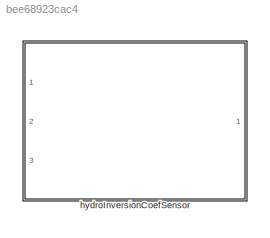
MODEL slx_bee68923cac4
KIND library
CONFIG AbsTol = auto
CONFIG EnableMultiTasking = off
CONFIG FixedStep = auto
CONFIG MaxStep = auto
CONFIG MinStep = auto
CONFIG RelTol = 1e-3
CONFIG SampleTimeConstraint = Unconstrained
CONFIG SolverName = VariableStepAuto
CONFIG StartTime = 0.0
CONFIG StopTime = 10.0
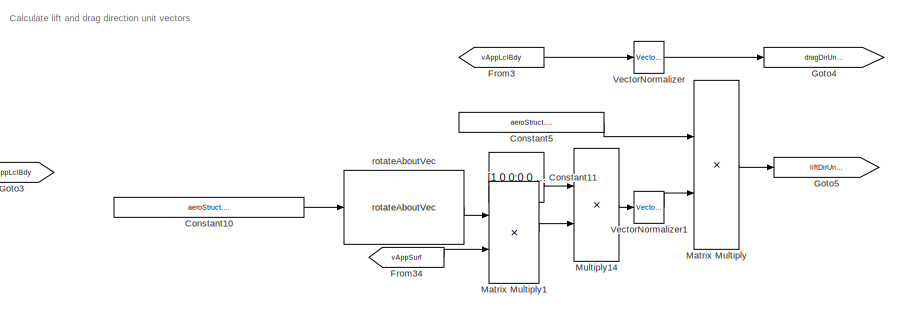
[diagram: hydroInversionCoefSensor - part 1/2, top right region]
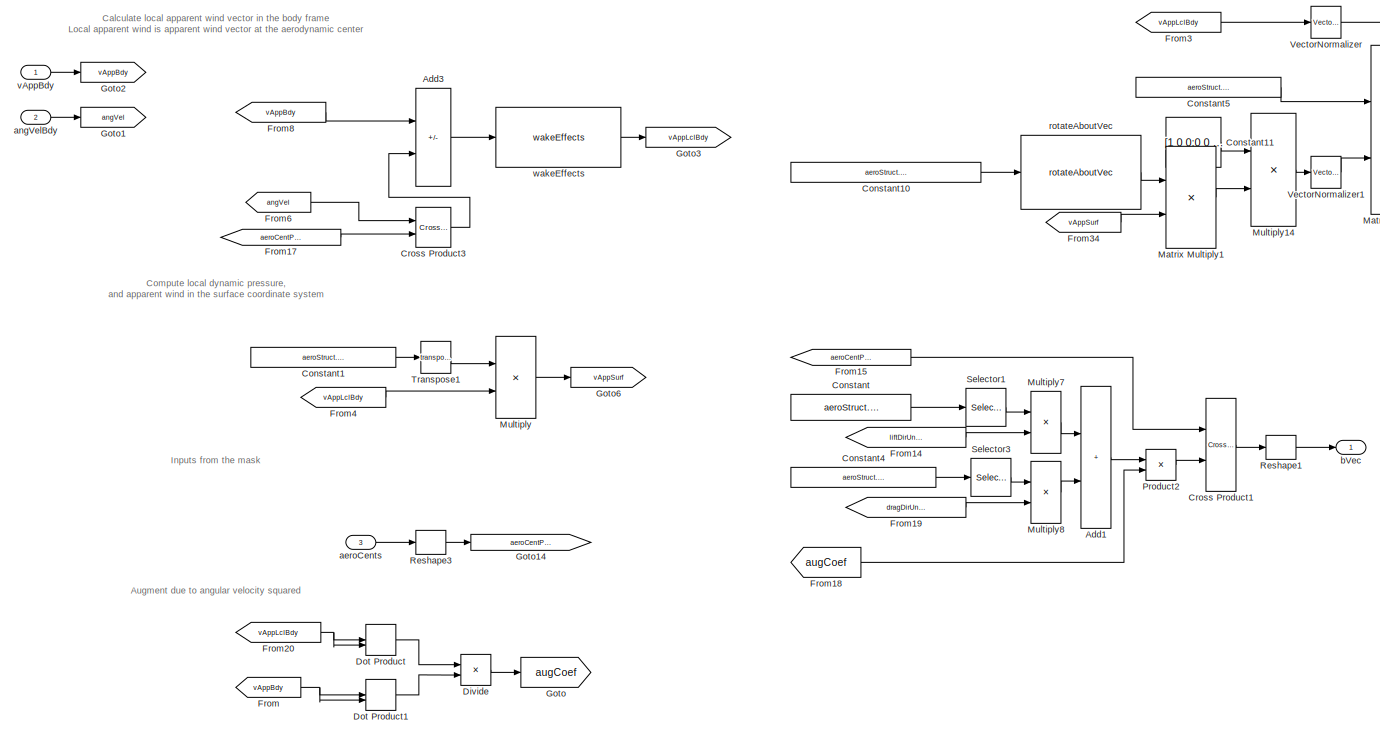
[diagram: hydroInversionCoefSensor - part 2/2, most of the canvas]
BLOCK [SubSystem] hydroInversionCoefSensor
  Ports = [3, 1]
  RequestExecContextInheritance = off
BLOCK [Sum] hydroInversionCoefSensor/Add1
  IconShape = rectangular
  Ports = [2, 1]
BLOCK [Sum] hydroInversionCoefSensor/Add3
  IconShape = rectangular
  Inputs = +-
  Ports = [2, 1]
BLOCK [Constant] hydroInversionCoefSensor/Constant
  NameLocation = top
  Value = aeroStruct.gainCL.Value
BLOCK [Constant] hydroInversionCoefSensor/Constant1
  Value = aeroStruct.RSurf2Bdy.Value
BLOCK [Constant] hydroInversionCoefSensor/Constant10
  Value = aeroStruct.incAlphaUnitVecSurf.Value
BLOCK [Constant] hydroInversionCoefSensor/Constant11
  Value = [1 0 0;0 0 0;0 0 1]
BLOCK [Constant] hydroInversionCoefSensor/Constant4
  NameLocation = top
  Value = aeroStruct.gainCD.Value
BLOCK [Constant] hydroInversionCoefSensor/Constant5
  Value = aeroStruct.RSurf2Bdy.Value
BLOCK [Reference] hydroInversionCoefSensor/Cross Product1  REF=vrlib/Utilities/Cross Product
  Ports = [2, 1]
  SourceBlock = vrlib/Utilities/Cross Product
  SourceProductBaseCode = SL
  SourceType = Cross Product
BLOCK [Reference] hydroInversionCoefSensor/Cross Product3  REF=vrlib/Utilities/Cross Product
  Ports = [2, 1]
  SourceBlock = vrlib/Utilities/Cross Product
  SourceProductBaseCode = SL
  SourceType = Cross Product
BLOCK [Product] hydroInversionCoefSensor/Divide
  Inputs = */
  Ports = [2, 1]
BLOCK [DotProduct] hydroInversionCoefSensor/Dot Product
  OutDataTypeStr = Inherit: Inherit via internal rule
BLOCK [DotProduct] hydroInversionCoefSensor/Dot Product1
  OutDataTypeStr = Inherit: Inherit via internal rule
BLOCK [From] hydroInversionCoefSensor/From
  GotoTag = vAppBdy
BLOCK [From] hydroInversionCoefSensor/From14
  GotoTag = liftDirUnitVecBdy
BLOCK [From] hydroInversionCoefSensor/From15
  GotoTag = aeroCentPosVecBdy
BLOCK [From] hydroInversionCoefSensor/From17
  GotoTag = aeroCentPosVecBdy
BLOCK [From] hydroInversionCoefSensor/From18
  GotoTag = augCoef
BLOCK [From] hydroInversionCoefSensor/From19
  GotoTag = dragDirUnitVecBdy
BLOCK [From] hydroInversionCoefSensor/From20
  GotoTag = vAppLclBdy
BLOCK [From] hydroInversionCoefSensor/From3
  GotoTag = vAppLclBdy
BLOCK [From] hydroInversionCoefSensor/From34
  GotoTag = vAppSurf
BLOCK [From] hydroInversionCoefSensor/From4
  GotoTag = vAppLclBdy
BLOCK [From] hydroInversionCoefSensor/From6
  GotoTag = angVel
BLOCK [From] hydroInversionCoefSensor/From8
  GotoTag = vAppBdy
BLOCK [Goto] hydroInversionCoefSensor/Goto
  GotoTag = augCoef
BLOCK [Goto] hydroInversionCoefSensor/Goto1
  GotoTag = angVel
BLOCK [Goto] hydroInversionCoefSensor/Goto14
  GotoTag = aeroCentPosVecBdy
BLOCK [Goto] hydroInversionCoefSensor/Goto2
  GotoTag = vAppBdy
BLOCK [Goto] hydroInversionCoefSensor/Goto3
  GotoTag = vAppLclBdy
BLOCK [Goto] hydroInversionCoefSensor/Goto4
  GotoTag = dragDirUnitVecBdy
BLOCK [Goto] hydroInversionCoefSensor/Goto5
  GotoTag = liftDirUnitVecBdy
BLOCK [Goto] hydroInversionCoefSensor/Goto6
  GotoTag = vAppSurf
BLOCK [Product] hydroInversionCoefSensor/Matrix Multiply
  Multiplication = Matrix(*)
  Ports = [2, 1]
BLOCK [Product] hydroInversionCoefSensor/Matrix Multiply1
  Multiplication = Matrix(*)
  Ports = [2, 1]
BLOCK [Product] hydroInversionCoefSensor/Multiply
  Multiplication = Matrix(*)
  Ports = [2, 1]
BLOCK [Product] hydroInversionCoefSensor/Multiply14
  Multiplication = Matrix(*)
  Ports = [2, 1]
BLOCK [Product] hydroInversionCoefSensor/Multiply7
  Ports = [2, 1]
BLOCK [Product] hydroInversionCoefSensor/Multiply8
  Ports = [2, 1]
BLOCK [Product] hydroInversionCoefSensor/Product2
  Ports = [2, 1]
BLOCK [Reshape] hydroInversionCoefSensor/Reshape1
  OutputDimensionality = Column vector (2-D)
  Ports = [1, 1]
BLOCK [Reshape] hydroInversionCoefSensor/Reshape3
  OutputDimensionality = Column vector (2-D)
  Ports = [1, 1]
BLOCK [Selector] hydroInversionCoefSensor/Selector1
  IndexOptions = Index vector (dialog)
  Indices = 2
  InputPortWidth = 3
  OutputSizes = 1
  Ports = [1, 1]
BLOCK [Selector] hydroInversionCoefSensor/Selector3
  IndexOptions = Index vector (dialog)
  Indices = 2
  InputPortWidth = 3
  OutputSizes = 1
  Ports = [1, 1]
BLOCK [Math] hydroInversionCoefSensor/Transpose1
  Operator = transpose
  Ports = [1, 1]
  SignedPower = on
BLOCK [Reference] hydroInversionCoefSensor/VectorNormalizer   REF=vectorNormalizer_ul/VectorNormalizer

  Ports = [1, 1]
  SourceBlock = vectorNormalizer_ul/VectorNormalizer
  SourceType = SubSystem
BLOCK [Reference] hydroInversionCoefSensor/VectorNormalizer1  REF=vectorNormalizer_ul/VectorNormalizer

  Ports = [1, 1]
  SourceBlock = vectorNormalizer_ul/VectorNormalizer
  SourceType = SubSystem
BLOCK [Inport] hydroInversionCoefSensor/aeroCents
  Port = 3
BLOCK [Inport] hydroInversionCoefSensor/angVelBdy
  Port = 2
BLOCK [Outport] hydroInversionCoefSensor/bVec
  PortDimensions = [3 1]
  VectorParamsAs1DForOutWhenUnconnected = off
BLOCK [Reference] hydroInversionCoefSensor/rotateAboutVec  REF=rotateAboutVec/rotateAboutVec
  Ports = [1, 1]
  SourceBlock = rotateAboutVec/rotateAboutVec
BLOCK [Inport] hydroInversionCoefSensor/vAppBdy
BLOCK [Reference] hydroInversionCoefSensor/wakeEffects  REF=wakeEffect_ul/wakeEffects
  Ports = [1, 1]
  SourceBlock = wakeEffect_ul/wakeEffects
  SourceType = SubSystem
ANNOTATION hydroInversionCoefSensor: Augment due to angular velocity squared
ANNOTATION hydroInversionCoefSensor: Calculate lift and drag direction unit vectors
ANNOTATION hydroInversionCoefSensor: Calculate local apparent wind vector in the body frame Local apparent wind is apparent wind vector at the aerodynamic center
ANNOTATION hydroInversionCoefSensor: Compute local dynamic pressure, and apparent wind in the surface coordinate system
ANNOTATION hydroInversionCoefSensor: Inputs from the mask
LINE hydroInversionCoefSensor/Add1:1 -> hydroInversionCoefSensor/Product2:1
LINE hydroInversionCoefSensor/Add3:1 -> hydroInversionCoefSensor/wakeEffects:1
LINE hydroInversionCoefSensor/Constant10:1 -> hydroInversionCoefSensor/rotateAboutVec:1
LINE hydroInversionCoefSensor/Constant11:1 -> hydroInversionCoefSensor/Multiply14:1
LINE hydroInversionCoefSensor/Constant1:1 -> hydroInversionCoefSensor/Transpose1:1
LINE hydroInversionCoefSensor/Constant4:1 -> hydroInversionCoefSensor/Selector3:1
LINE hydroInversionCoefSensor/Constant5:1 -> hydroInversionCoefSensor/Matrix Multiply:1
LINE hydroInversionCoefSensor/Constant:1 -> hydroInversionCoefSensor/Selector1:1
LINE hydroInversionCoefSensor/Cross Product1:1 -> hydroInversionCoefSensor/Reshape1:1
LINE hydroInversionCoefSensor/Cross Product3:1 -> hydroInversionCoefSensor/Add3:2
LINE hydroInversionCoefSensor/Divide:1 -> hydroInversionCoefSensor/Goto:1
LINE hydroInversionCoefSensor/Dot Product1:1 -> hydroInversionCoefSensor/Divide:2
LINE hydroInversionCoefSensor/Dot Product:1 -> hydroInversionCoefSensor/Divide:1
LINE hydroInversionCoefSensor/From14:1 -> hydroInversionCoefSensor/Multiply7:2
LINE hydroInversionCoefSensor/From15:1 -> hydroInversionCoefSensor/Cross Product1:1
LINE hydroInversionCoefSensor/From17:1 -> hydroInversionCoefSensor/Cross Product3:2
LINE hydroInversionCoefSensor/From18:1 -> hydroInversionCoefSensor/Product2:2
LINE hydroInversionCoefSensor/From19:1 -> hydroInversionCoefSensor/Multiply8:2
NET hydroInversionCoefSensor/From20:1 -> hydroInversionCoefSensor/Dot Product:1, hydroInversionCoefSensor/Dot Product:2
LINE hydroInversionCoefSensor/From34:1 -> hydroInversionCoefSensor/Matrix Multiply1:2
LINE hydroInversionCoefSensor/From3:1 -> hydroInversionCoefSensor/VectorNormalizer :1
LINE hydroInversionCoefSensor/From4:1 -> hydroInversionCoefSensor/Multiply:2
LINE hydroInversionCoefSensor/From6:1 -> hydroInversionCoefSensor/Cross Product3:1
LINE hydroInversionCoefSensor/From8:1 -> hydroInversionCoefSensor/Add3:1
NET hydroInversionCoefSensor/From:1 -> hydroInversionCoefSensor/Dot Product1:1, hydroInversionCoefSensor/Dot Product1:2
LINE hydroInversionCoefSensor/Matrix Multiply1:1 -> hydroInversionCoefSensor/Multiply14:2
LINE hydroInversionCoefSensor/Matrix Multiply:1 -> hydroInversionCoefSensor/Goto5:1
LINE hydroInversionCoefSensor/Multiply14:1 -> hydroInversionCoefSensor/VectorNormalizer1:1
LINE hydroInversionCoefSensor/Multiply7:1 -> hydroInversionCoefSensor/Add1:1
LINE hydroInversionCoefSensor/Multiply8:1 -> hydroInversionCoefSensor/Add1:2
LINE hydroInversionCoefSensor/Multiply:1 -> hydroInversionCoefSensor/Goto6:1
LINE hydroInversionCoefSensor/Product2:1 -> hydroInversionCoefSensor/Cross Product1:2
LINE hydroInversionCoefSensor/Reshape1:1 -> hydroInversionCoefSensor/bVec:1
LINE hydroInversionCoefSensor/Reshape3:1 -> hydroInversionCoefSensor/Goto14:1
LINE hydroInversionCoefSensor/Selector1:1 -> hydroInversionCoefSensor/Multiply7:1
LINE hydroInversionCoefSensor/Selector3:1 -> hydroInversionCoefSensor/Multiply8:1
LINE hydroInversionCoefSensor/Transpose1:1 -> hydroInversionCoefSensor/Multiply:1
LINE hydroInversionCoefSensor/VectorNormalizer :1 -> hydroInversionCoefSensor/Goto4:1
LINE hydroInversionCoefSensor/VectorNormalizer1:1 -> hydroInversionCoefSensor/Matrix Multiply:2
LINE hydroInversionCoefSensor/aeroCents:1 -> hydroInversionCoefSensor/Reshape3:1
LINE hydroInversionCoefSensor/angVelBdy:1 -> hydroInversionCoefSensor/Goto1:1
LINE hydroInversionCoefSensor/rotateAboutVec:1 -> hydroInversionCoefSensor/Matrix Multiply1:1
LINE hydroInversionCoefSensor/vAppBdy:1 -> hydroInversionCoefSensor/Goto2:1
LINE hydroInversionCoefSensor/wakeEffects:1 -> hydroInversionCoefSensor/Goto3:1
note: NET lines group one-source signal fan-out (src -> all destinations, sorted); 1:1 wires keep LINE
